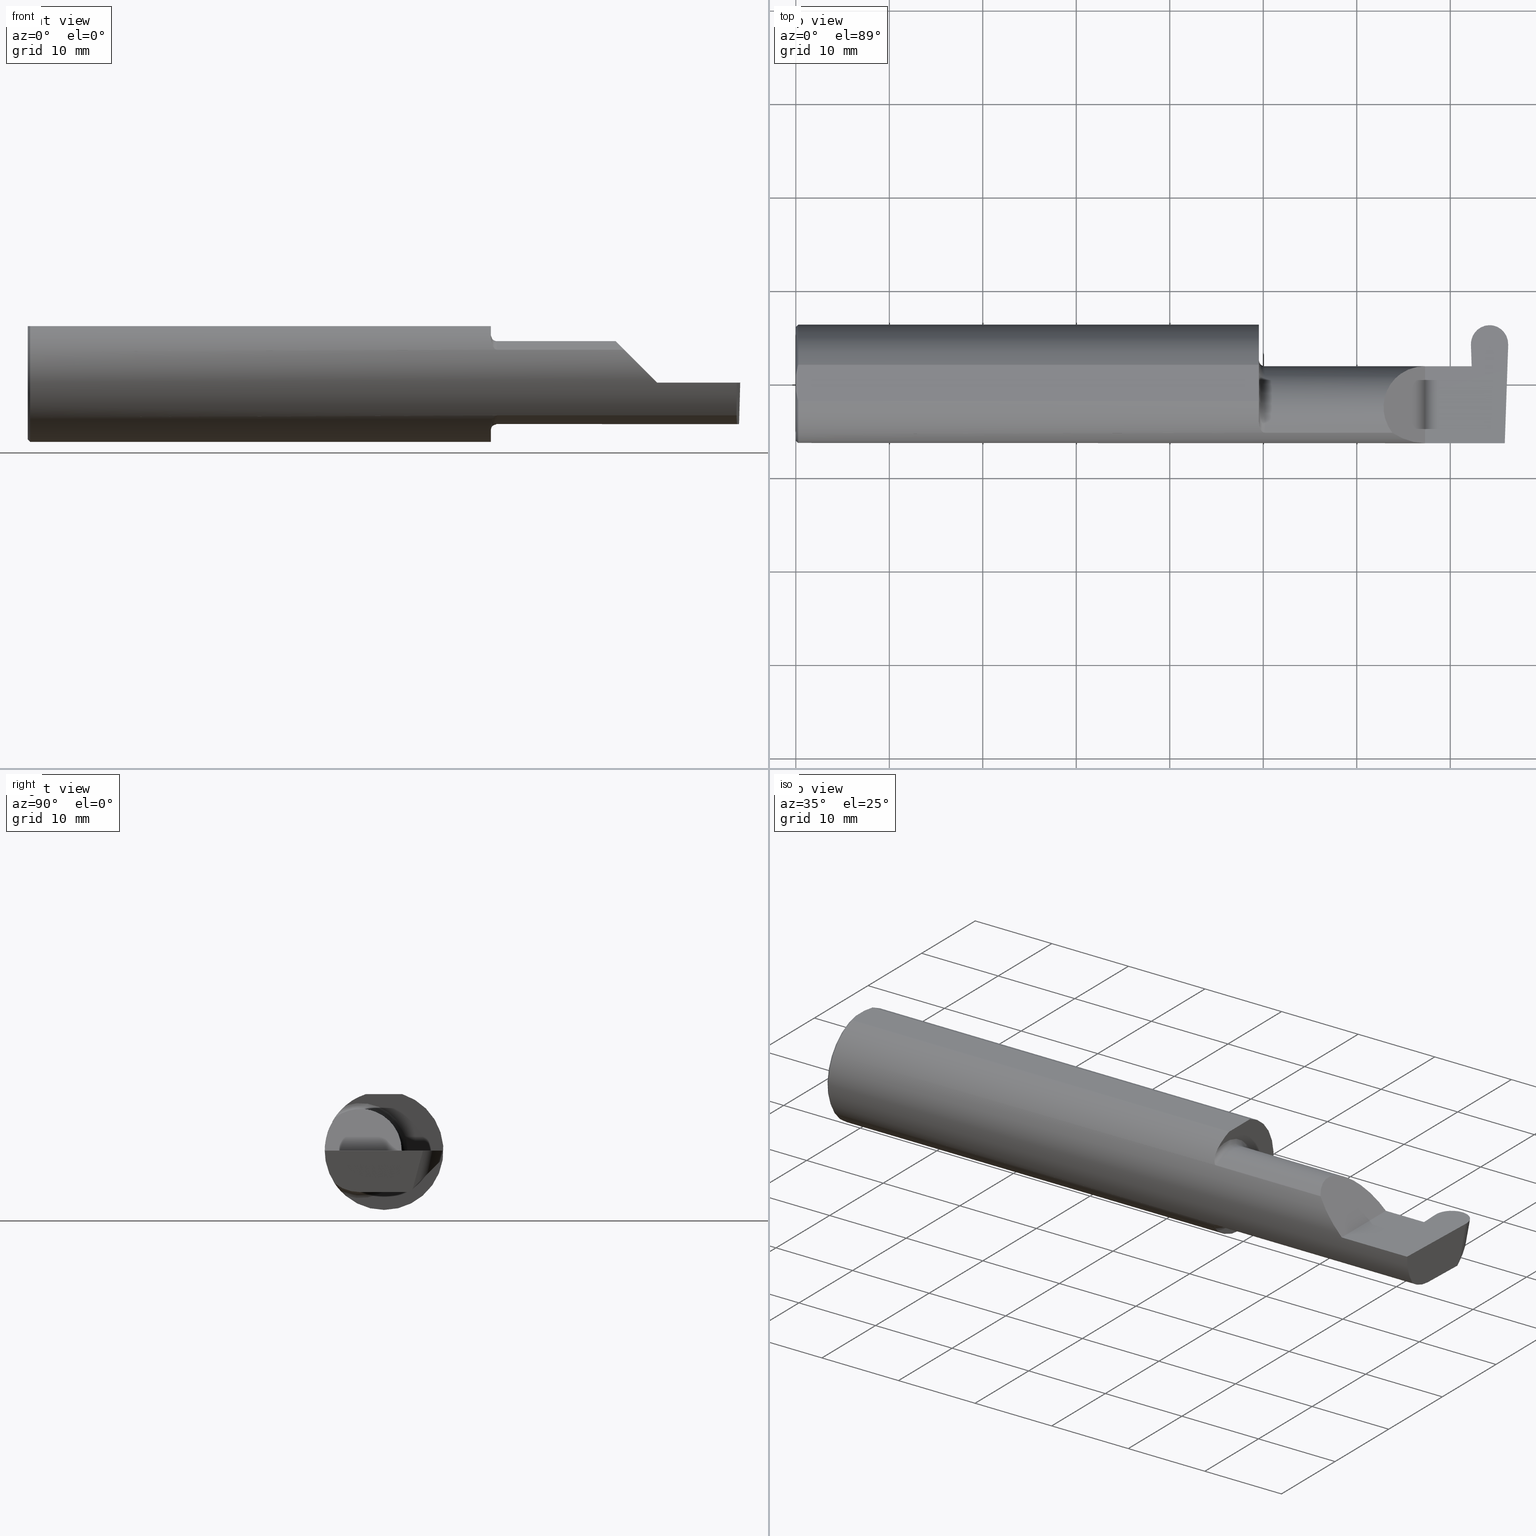
[diagram: canonical four-view strip — front | top / right | iso, engineering-drawing reading convention]
A machine part, canonical four-view strip (front | top / right | iso — engineering-drawing reading convention). The complete STEP part file that produces these views, byte-faithful:
ISO-10303-21;
HEADER;
FILE_DESCRIPTION (( 'STEP AP203' ),
    '1' );
FILE_NAME ('222491-GFR156-16.STEP',
    '2024-06-28T19:20:52',
    ( '' ),
    ( '' ),
    'SwSTEP 2.0',
    'SolidWorks 2024',
    '' );
FILE_SCHEMA (( 'CONFIG_CONTROL_DESIGN' ));
ENDSEC;

DATA;
#1 = CARTESIAN_POINT ( 'NONE',  ( 2.847896006995016549, 0.07056399972053264968, -0.1057442486376092144 ) ) ;
#2 = EDGE_CURVE ( 'NONE', #619, #664, #17, .T. ) ;
#3 = ORIENTED_EDGE ( 'NONE', *, *, #369, .T. ) ;
#4 = VECTOR ( 'NONE', #705, 39.37007874015748143 ) ;
#5 = CARTESIAN_POINT ( 'NONE',  ( 2.921940976684220370, 0.2471499999999999808, 0.000000000000000000 ) ) ;
#6 = CARTESIAN_POINT ( 'NONE',  ( 1.962616400345755574, -0.2024684335577102701, 0.1464246884265638649 ) ) ;
#7 = ORIENTED_EDGE ( 'NONE', *, *, #473, .T. ) ;
#8 = APPLICATION_PROTOCOL_DEFINITION ( 'international standard', 'config_control_design', 1994, #706 ) ;
#9 = PLANE ( 'NONE',  #672 ) ;
#10 = VERTEX_POINT ( 'NONE', #578 ) ;
#11 = PERSON_AND_ORGANIZATION ( #336, #124 ) ;
#12 = CARTESIAN_POINT ( 'NONE',  ( 1.975000000000000089, -0.1008500000000000646, 0.000000000000000000 ) ) ;
#13 = ORIENTED_EDGE ( 'NONE', *, *, #613, .F. ) ;
#14 = PERSON_AND_ORGANIZATION_ROLE ( 'creator' ) ;
#15 = PRODUCT_DEFINITION_FORMATION_WITH_SPECIFIED_SOURCE ( 'ANY', '', #355, .NOT_KNOWN. ) ;
#16 = CARTESIAN_POINT ( 'NONE',  ( 2.650000000000000355, -0.2500000000000000555, 4.286263797015729199E-17 ) ) ;
#17 = LINE ( 'NONE', #91, #320 ) ;
#18 = SHAPE_DEFINITION_REPRESENTATION ( #305, #214 ) ;
#19 = DIRECTION ( 'NONE',  ( 0.000000000000000000, -0.7071067811865514585, 0.7071067811865435759 ) ) ;
#20 = CARTESIAN_POINT ( 'NONE',  ( 1.950000000000000178, -0.1008500000000000507, 0.000000000000000000 ) ) ;
#21 = DIRECTION ( 'NONE',  ( -1.000000000000000000, -3.825103525024356331E-17, -0.000000000000000000 ) ) ;
#22 = CARTESIAN_POINT ( 'NONE',  ( 2.847162130284206061, 0.1205682248496117298, -0.1602561122985578790 ) ) ;
#23 = EDGE_CURVE ( 'NONE', #664, #461, #581, .T. ) ;
#24 = B_SPLINE_CURVE_WITH_KNOTS ( 'NONE', 3,
 ( #200, #481, #539, #535 ),
 .UNSPECIFIED., .F., .F.,
 ( 4, 4 ),
 ( 0.01593449416844770414, 0.01712021724825603733 ),
 .UNSPECIFIED. ) ;
#25 = VECTOR ( 'NONE', #325, 39.37007874015748854 ) ;
#26 = CARTESIAN_POINT ( 'NONE',  ( 1.967611663768900065, -0.2061921161193829843, -0.1411075319999377520 ) ) ;
#27 = AXIS2_PLACEMENT_3D ( 'NONE', #646, #201, #151 ) ;
#28 = LINE ( 'NONE', #526, #437 ) ;
#29 = ADVANCED_FACE ( 'NONE', ( #80 ), #408, .T. ) ;
#30 = CARTESIAN_POINT ( 'NONE',  ( 1.950000000000000178, -0.1616050818046604054, -0.1905487340154980447 ) ) ;
#31 = DIRECTION ( 'NONE',  ( -0.01806954526206912617, 0.01744955702544859211, 0.9996844524616943506 ) ) ;
#32 =( BOUNDED_CURVE ( )  B_SPLINE_CURVE ( 3, ( #22, #249, #468, #420 ),
 .UNSPECIFIED., .F., .T. ) 
 B_SPLINE_CURVE_WITH_KNOTS ( ( 4, 4 ),
 ( 1.556556287886218692, 3.148123430193717986 ),
 .UNSPECIFIED. ) 
 CURVE ( )  GEOMETRIC_REPRESENTATION_ITEM ( )  RATIONAL_B_SPLINE_CURVE ( ( 1.000000000000000000, 0.7998167921253449553, 0.7998167921253449553, 1.000000000000000000 ) ) 
 REPRESENTATION_ITEM ( '' )  );
#33 = EDGE_CURVE ( 'NONE', #411, #501, #32, .T. ) ;
#34 = PLANE ( 'NONE',  #379 ) ;
#35 = DIRECTION ( 'NONE',  ( -0.02590004391968283443, 0.2587322210431824421, 0.9656017944882975268 ) ) ;
#36 = ORIENTED_EDGE ( 'NONE', *, *, #56, .T. ) ;
#37 = CARTESIAN_POINT ( 'NONE',  ( 2.849201561102993718, -0.1010244175776143366, -0.1750000000000000722 ) ) ;
#38 = PLANE ( 'NONE',  #547 ) ;
#39 = VECTOR ( 'NONE', #35, 39.37007874015748854 ) ;
#40 = ORIENTED_EDGE ( 'NONE', *, *, #68, .T. ) ;
#41 = CARTESIAN_POINT ( 'NONE',  ( 2.511704467739031887, -0.2080850024789288877, 0.1382955322609669413 ) ) ;
#42 = DIRECTION ( 'NONE',  ( 0.000000000000000000, 0.000000000000000000, -1.000000000000000000 ) ) ;
#43 = VERTEX_POINT ( 'NONE', #252 ) ;
#44 = LINE ( 'NONE', #688, #585 ) ;
#45 = CARTESIAN_POINT ( 'NONE',  ( 2.987584882537838826, -0.1008500000000000368, -0.1750000000000000722 ) ) ;
#46 = ORIENTED_EDGE ( 'NONE', *, *, #369, .F. ) ;
#47 = EDGE_CURVE ( 'NONE', #692, #403, #86, .T. ) ;
#48 = CARTESIAN_POINT ( 'NONE',  ( 2.985438186182187259, -0.2498499999999999888, 0.000000000000000000 ) ) ;
#49 = CARTESIAN_POINT ( 'NONE',  ( 3.402190948718818664, -0.1008500000000000368, -0.1750000000000000722 ) ) ;
#50 = ORIENTED_EDGE ( 'NONE', *, *, #339, .F. ) ;
#51 = VECTOR ( 'NONE', #82, 39.37007874015748143 ) ;
#52 = VECTOR ( 'NONE', #99, 39.37007874015748143 ) ;
#53 = FACE_OUTER_BOUND ( 'NONE', #149, .T. ) ;
#54 = CARTESIAN_POINT ( 'NONE',  ( 1.950000000000000178, 0.000000000000000000, 0.000000000000000000 ) ) ;
#55 = ORIENTED_EDGE ( 'NONE', *, *, #196, .T. ) ;
#56 = EDGE_CURVE ( 'NONE', #215, #301, #28, .T. ) ;
#57 =( BOUNDED_CURVE ( )  B_SPLINE_CURVE ( 3, ( #137, #300, #569, #307 ),
 .UNSPECIFIED., .F., .T. ) 
 B_SPLINE_CURVE_WITH_KNOTS ( ( 4, 4 ),
 ( 3.045231736429742764, 4.645220385064936508 ),
 .UNSPECIFIED. ) 
 CURVE ( )  GEOMETRIC_REPRESENTATION_ITEM ( )  RATIONAL_B_SPLINE_CURVE ( ( 1.000000000000000000, 0.7978071872141905274, 0.7978071872141905274, 1.000000000000000000 ) ) 
 REPRESENTATION_ITEM ( '' )  );
#58 = DIRECTION ( 'NONE',  ( 1.000000000000000000, 0.000000000000000000, 0.000000000000000000 ) ) ;
#59 = ORIENTED_EDGE ( 'NONE', *, *, #294, .F. ) ;
#60 = CC_DESIGN_PERSON_AND_ORGANIZATION_ASSIGNMENT ( #288, #506, ( #355 ) ) ;
#61 = B_SPLINE_CURVE_WITH_KNOTS ( 'NONE', 3,
 ( #424, #145, #254, #313 ),
 .UNSPECIFIED., .F., .F.,
 ( 4, 4 ),
 ( 0.000000000000000000, 1.000000000000000000 ),
 .UNSPECIFIED. ) ;
#62 = FACE_OUTER_BOUND ( 'NONE', #75, .T. ) ;
#63 = EDGE_LOOP ( 'NONE', ( #13, #520, #511, #138, #615 ) ) ;
#64 = VECTOR ( 'NONE', #117, 39.37007874015748143 ) ;
#65 = LOCAL_TIME ( 12, 20, 52.00000000000000000, #510 ) ;
#66 = CARTESIAN_POINT ( 'NONE',  ( 2.985143277913549831, -0.1771157075472508391, -0.1623092683844332140 ) ) ;
#67 = VERTEX_POINT ( 'NONE', #198 ) ;
#68 = EDGE_CURVE ( 'NONE', #533, #127, #273, .T. ) ;
#69 = DATE_AND_TIME ( #356, #171 ) ;
#70 = CARTESIAN_POINT ( 'NONE',  ( 2.847162130284206061, 0.1205682248496117298, -0.1602561122985578790 ) ) ;
#71 = ORIENTED_EDGE ( 'NONE', *, *, #316, .F. ) ;
#72 = B_SPLINE_CURVE_WITH_KNOTS ( 'NONE', 3,
 ( #500, #122, #557, #283, #504, #605, #566, #6, #670, #562, #507, #235, #178, #334 ),
 .UNSPECIFIED., .F., .F.,
 ( 4, 2, 2, 2, 2, 2, 4 ),
 ( 0.0003834465838148165464, 0.0008781406165086598969, 0.001372834649202503247, 0.001867528681896348658, 0.002114875698243275700, 0.002238549206416746810, 0.002362222714590217487 ),
 .UNSPECIFIED. ) ;
#73 = PERSON_AND_ORGANIZATION ( #336, #124 ) ;
#74 = DIRECTION ( 'NONE',  ( -1.000000000000000000, -0.000000000000000000, -0.000000000000000000 ) ) ;
#75 = EDGE_LOOP ( 'NONE', ( #3, #319, #517, #220 ) ) ;
#76 = DATE_AND_TIME ( #192, #240 ) ;
#77 = VECTOR ( 'NONE', #100, 39.37007874015748143 ) ;
#78 = CONICAL_SURFACE ( 'NONE', #563, 0.2398500000000001742, 0.7853981633974466137 ) ;
#79 = PLANE ( 'NONE',  #144 ) ;
#80 = FACE_OUTER_BOUND ( 'NONE', #505, .T. ) ;
#81 = ADVANCED_FACE ( 'NONE', ( #583 ), #130, .F. ) ;
#82 = DIRECTION ( 'NONE',  ( -0.000000000000000000, 1.000000000000000000, -0.000000000000000000 ) ) ;
#83 = EDGE_LOOP ( 'NONE', ( #187, #497, #530, #246, #335, #442, #244, #594, #118 ) ) ;
#84 = DIRECTION ( 'NONE',  ( 0.000000000000000000, 0.000000000000000000, -1.000000000000000000 ) ) ;
#85 = EDGE_CURVE ( 'NONE', #236, #430, #693, .T. ) ;
#86 = LINE ( 'NONE', #308, #353 ) ;
#87 =( BOUNDED_CURVE ( )  B_SPLINE_CURVE ( 3, ( #556, #549, #278, #5 ),
 .UNSPECIFIED., .F., .T. ) 
 B_SPLINE_CURVE_WITH_KNOTS ( ( 4, 4 ),
 ( 1.637964922114649946, 3.237953570749842136 ),
 .UNSPECIFIED. ) 
 CURVE ( )  GEOMETRIC_REPRESENTATION_ITEM ( )  RATIONAL_B_SPLINE_CURVE ( ( 1.000000000000000000, 0.7978071872141907495, 0.7978071872141907495, 1.000000000000000000 ) ) 
 REPRESENTATION_ITEM ( '' )  );
#88 = VECTOR ( 'NONE', #518, 39.37007874015748143 ) ;
#89 = LINE ( 'NONE', #649, #345 ) ;
#90 = AXIS2_PLACEMENT_3D ( 'NONE', #107, #332, #227 ) ;
#91 = CARTESIAN_POINT ( 'NONE',  ( 2.845984104502489398, 0.07414999999999977165, 0.000000000000000000 ) ) ;
#92 = EDGE_CURVE ( 'NONE', #465, #692, #184, .T. ) ;
#93 = LINE ( 'NONE', #257, #404 ) ;
#94 = PLANE ( 'NONE',  #217 ) ;
#95 = VERTEX_POINT ( 'NONE', #698 ) ;
#96 = CARTESIAN_POINT ( 'NONE',  ( 1.956147634408387459, -0.1932733126899460196, -0.1584637047788198250 ) ) ;
#97 = DIRECTION ( 'NONE',  ( 0.000000000000000000, -0.9998476951563912696, 0.01745240643728358451 ) ) ;
#98 = VERTEX_POINT ( 'NONE', #269 ) ;
#99 = DIRECTION ( 'NONE',  ( 1.000000000000000000, 0.000000000000000000, 0.000000000000000000 ) ) ;
#100 = DIRECTION ( 'NONE',  ( -1.000000000000000000, -3.825103525024356331E-17, -0.000000000000000000 ) ) ;
#101 = AXIS2_PLACEMENT_3D ( 'NONE', #16, #351, #237 ) ;
#102 = ORIENTED_EDGE ( 'NONE', *, *, #400, .T. ) ;
#103 = LINE ( 'NONE', #154, #204 ) ;
#104 = ADVANCED_FACE ( 'NONE', ( #323 ), #489, .T. ) ;
#105 = DIRECTION ( 'NONE',  ( -1.000000000000000000, -0.000000000000000000, -0.000000000000000000 ) ) ;
#106 = ORIENTED_EDGE ( 'NONE', *, *, #564, .T. ) ;
#107 = CARTESIAN_POINT ( 'NONE',  ( 3.501298404146671484, 0.2498499999999998500, 0.2378499999999998671 ) ) ;
#108 = CARTESIAN_POINT ( 'NONE',  ( 2.849201506090199842, -0.1008500000000000368, -0.1750000000000000444 ) ) ;
#109 = EDGE_LOOP ( 'NONE', ( #276, #169, #695, #59 ) ) ;
#110 = DIRECTION ( 'NONE',  ( 1.000000000000000000, 0.000000000000000000, 0.000000000000000000 ) ) ;
#111 =( BOUNDED_CURVE ( )  B_SPLINE_CURVE ( 3, ( #173, #119, #660, #228 ),
 .UNSPECIFIED., .F., .T. ) 
 B_SPLINE_CURVE_WITH_KNOTS ( ( 4, 4 ),
 ( 3.135061876985868246, 4.726629019293367762 ),
 .UNSPECIFIED. ) 
 CURVE ( )  GEOMETRIC_REPRESENTATION_ITEM ( )  RATIONAL_B_SPLINE_CURVE ( ( 1.000000000000000000, 0.7998167921253448442, 0.7998167921253448442, 1.000000000000000000 ) ) 
 REPRESENTATION_ITEM ( '' )  );
#112 = CARTESIAN_POINT ( 'NONE',  ( 2.984481223124517690, -0.2080850024789289432, -0.1382955322609668858 ) ) ;
#113 = ORIENTED_EDGE ( 'NONE', *, *, #564, .F. ) ;
#114 = AXIS2_PLACEMENT_3D ( 'NONE', #20, #191, #304 ) ;
#115 = ADVANCED_FACE ( 'NONE', ( #529 ), #375, .T. ) ;
#116 =( NAMED_UNIT ( * ) PLANE_ANGLE_UNIT ( ) SI_UNIT ( $, .RADIAN. ) );
#117 = DIRECTION ( 'NONE',  ( 1.000000000000000000, 3.825103525024356331E-17, 0.000000000000000000 ) ) ;
#118 = ORIENTED_EDGE ( 'NONE', *, *, #689, .T. ) ;
#119 = CARTESIAN_POINT ( 'NONE',  ( 2.968109836623094466, 0.2342636810864597019, -0.04656065606170858850 ) ) ;
#120 = ORIENTED_EDGE ( 'NONE', *, *, #700, .F. ) ;
#121 = CARTESIAN_POINT ( 'NONE',  ( 0.000000000000000000, 0.000000000000000000, 0.000000000000000000 ) ) ;
#122 = CARTESIAN_POINT ( 'NONE',  ( 1.950000000000000844, -0.1665641037263009272, 0.1863429692936361959 ) ) ;
#123 = ORIENTED_EDGE ( 'NONE', *, *, #33, .F. ) ;
#124 = ORGANIZATION ( 'UNSPECIFIED', 'UNSPECIFIED', '' ) ;
#125 = CIRCLE ( 'NONE', #219, 0.2498499999999999888 ) ;
#126 = CARTESIAN_POINT ( 'NONE',  ( 2.650000000000000355, -0.2500000000000000555, 4.286263797015729199E-17 ) ) ;
#127 = VERTEX_POINT ( 'NONE', #428 ) ;
#128 = APPROVAL_ROLE ( '' ) ;
#129 = CARTESIAN_POINT ( 'NONE',  ( 2.847934510574751776, 0.1058243371481696476, -0.1750000000000000722 ) ) ;
#130 = PLANE ( 'NONE',  #286 ) ;
#131 = PERSON_AND_ORGANIZATION_ROLE ( 'classification_officer' ) ;
#132 = DIRECTION ( 'NONE',  ( -0.03489949670249601482, 0.9993908270190959842, -1.222058880457094148E-16 ) ) ;
#133 = DIRECTION ( 'NONE',  ( -1.000000000000000000, -3.825103525024356331E-17, -0.000000000000000000 ) ) ;
#134 = EDGE_CURVE ( 'NONE', #398, #344, #314, .T. ) ;
#135 = COORDINATED_UNIVERSAL_TIME_OFFSET ( 8, 0, .BEHIND. ) ;
#136 = VECTOR ( 'NONE', #133, 39.37007874015748143 ) ;
#137 = CARTESIAN_POINT ( 'NONE',  ( 2.920795643315781120, 0.2471499999999999808, 0.000000000000000000 ) ) ;
#138 = ORIENTED_EDGE ( 'NONE', *, *, #524, .F. ) ;
#139 = PRODUCT_RELATED_PRODUCT_CATEGORY ( 'detail', '', ( #355 ) ) ;
#140 = EDGE_LOOP ( 'NONE', ( #179, #238, #328 ) ) ;
#141 = FACE_OUTER_BOUND ( 'NONE', #455, .T. ) ;
#142 = EDGE_CURVE ( 'NONE', #166, #95, #213, .T. ) ;
#143 = DIRECTION ( 'NONE',  ( -1.000000000000000000, -0.000000000000000000, -0.000000000000000000 ) ) ;
#144 = AXIS2_PLACEMENT_3D ( 'NONE', #675, #292, #577 ) ;
#145 = CARTESIAN_POINT ( 'NONE',  ( 2.834871741199312734, 0.07407892981889410700, -0.004071607948635049511 ) ) ;
#146 = DIRECTION ( 'NONE',  ( 0.9992386149554828290, 0.03489418134010871531, 0.01745240643728358798 ) ) ;
#147 = CARTESIAN_POINT ( 'NONE',  ( 2.849147273053401097, 0.07109536363756167876, -0.1750000000000000722 ) ) ;
#148 = CARTESIAN_POINT ( 'NONE',  ( 2.842784520300991158, 0.1657741035941333874, 0.000000000000000000 ) ) ;
#149 = EDGE_LOOP ( 'NONE', ( #347, #55, #444, #113, #206, #315 ) ) ;
#150 = DIRECTION ( 'NONE',  ( 0.000000000000000000, -0.2588190451025209615, -0.9659258262890682012 ) ) ;
#151 = DIRECTION ( 'NONE',  ( 0.000000000000000000, 0.000000000000000000, 1.000000000000000000 ) ) ;
#152 = VERTEX_POINT ( 'NONE', #205 ) ;
#153 = EDGE_CURVE ( 'NONE', #608, #95, #450, .T. ) ;
#154 = CARTESIAN_POINT ( 'NONE',  ( 2.845984104502489398, 0.07414999999999977165, 0.000000000000000000 ) ) ;
#155 = FACE_OUTER_BOUND ( 'NONE', #555, .T. ) ;
#156 = VECTOR ( 'NONE', #586, 39.37007874015748854 ) ;
#157 = CC_DESIGN_APPROVAL ( #396, ( #365 ) ) ;
#158 = VERTEX_POINT ( 'NONE', #266 ) ;
#159 = FACE_OUTER_BOUND ( 'NONE', #83, .T. ) ;
#160 =( BOUNDED_CURVE ( )  B_SPLINE_CURVE ( 3, ( #385, #708, #393, #48 ),
 .UNSPECIFIED., .F., .T. ) 
 B_SPLINE_CURVE_WITH_KNOTS ( ( 4, 4 ),
 ( 6.160376845738947615, 6.746954780470606039 ),
 .UNSPECIFIED. ) 
 CURVE ( )  GEOMETRIC_REPRESENTATION_ITEM ( )  RATIONAL_B_SPLINE_CURVE ( ( 1.000000000000000000, 0.9715321379117538569, 0.9715321379117538569, 1.000000000000000000 ) ) 
 REPRESENTATION_ITEM ( '' )  );
#161 = CARTESIAN_POINT ( 'NONE',  ( 0.009999999999999856226, -0.07650098038587520299, 0.2378499999999998671 ) ) ;
#162 = ORIENTED_EDGE ( 'NONE', *, *, #23, .F. ) ;
#163 = DIRECTION ( 'NONE',  ( 0.02590004391968283443, -0.2587322210431824976, -0.9656017944882975268 ) ) ;
#164 = LINE ( 'NONE', #446, #402 ) ;
#165 = ADVANCED_FACE ( 'NONE', ( #650 ), #202, .T. ) ;
#166 = VERTEX_POINT ( 'NONE', #587 ) ;
#167 = CARTESIAN_POINT ( 'NONE',  ( 2.988089862307433453, -0.08638927141514796126, -0.1750000000000000722 ) ) ;
#168 = CARTESIAN_POINT ( 'NONE',  ( 2.834942811380418259, 0.07414999999999977165, 0.000000000000000000 ) ) ;
#169 = ORIENTED_EDGE ( 'NONE', *, *, #153, .T. ) ;
#170 = AXIS2_PLACEMENT_3D ( 'NONE', #611, #58, #337 ) ;
#171 = LOCAL_TIME ( 12, 20, 52.00000000000000000, #135 ) ;
#172 = CARTESIAN_POINT ( 'NONE',  ( 0.000000000000000000, 0.000000000000000000, 0.000000000000000000 ) ) ;
#173 = CARTESIAN_POINT ( 'NONE',  ( 2.921368310000000967, 0.2348204004542366052, -0.04600393669393169210 ) ) ;
#174 = ORIENTED_EDGE ( 'NONE', *, *, #262, .F. ) ;
#175 = CARTESIAN_POINT ( 'NONE',  ( 1.950000000000000178, -0.1008500000000000507, 0.000000000000000000 ) ) ;
#176 = ORIENTED_EDGE ( 'NONE', *, *, #339, .T. ) ;
#177 = ADVANCED_FACE ( 'NONE', ( #155 ), #38, .F. ) ;
#178 = CARTESIAN_POINT ( 'NONE',  ( 1.973329956043142985, -0.2080850024798590603, 0.1382955322595676440 ) ) ;
#179 = ORIENTED_EDGE ( 'NONE', *, *, #242, .T. ) ;
#180 = VECTOR ( 'NONE', #443, 39.37007874015748143 ) ;
#181 = AXIS2_PLACEMENT_3D ( 'NONE', #121, #493, #342 ) ;
#182 = DATE_AND_TIME ( #573, #548 ) ;
#183 = LINE ( 'NONE', #579, #682 ) ;
#184 = LINE ( 'NONE', #258, #39 ) ;
#185 = APPROVAL_DATE_TIME ( #298, #499 ) ;
#186 = DIRECTION ( 'NONE',  ( 3.825103525024356331E-17, -1.000000000000000000, 0.000000000000000000 ) ) ;
#187 = ORIENTED_EDGE ( 'NONE', *, *, #47, .F. ) ;
#188 = EDGE_CURVE ( 'NONE', #545, #152, #263, .T. ) ;
#189 = PERSON_AND_ORGANIZATION_ROLE ( 'creator' ) ;
#190 = CARTESIAN_POINT ( 'NONE',  ( 2.650000000000000355, -0.2498499999999999610, 4.286263797015729199E-17 ) ) ;
#191 = DIRECTION ( 'NONE',  ( -1.000000000000000000, -3.825103525024356331E-17, -0.000000000000000000 ) ) ;
#192 = CALENDAR_DATE ( 2024, 28, 6 ) ;
#193 = TOROIDAL_SURFACE ( 'NONE', #595, 0.1999999999999999833, 0.02499999999999993894 ) ;
#194 = DIRECTION ( 'NONE',  ( 1.000000000000000000, 3.825103525024356331E-17, 0.000000000000000000 ) ) ;
#195 = ORIENTED_EDGE ( 'NONE', *, *, #142, .F. ) ;
#196 = EDGE_CURVE ( 'NONE', #158, #98, #380, .T. ) ;
#197 = CARTESIAN_POINT ( 'NONE',  ( 2.600434159100402987, -0.2498499999999999610, 0.04956584089959713973 ) ) ;
#198 = CARTESIAN_POINT ( 'NONE',  ( 2.994802109425249714, 0.1058243371481696615, -0.1750000000000001277 ) ) ;
#199 = EDGE_CURVE ( 'NONE', #358, #376, #482, .T. ) ;
#200 = CARTESIAN_POINT ( 'NONE',  ( 0.000000000000000000, 0.03090954545120574992, 0.2378499999999998671 ) ) ;
#201 = DIRECTION ( 'NONE',  ( -1.000000000000000000, -0.000000000000000000, -0.000000000000000000 ) ) ;
#202 = CONICAL_SURFACE ( 'NONE', #491, 0.2398500000000001742, 0.7853981633974466137 ) ;
#203 = DIRECTION ( 'NONE',  ( 0.000000000000000000, -0.9659258262890682012, 0.2588190451025209615 ) ) ;
#204 = VECTOR ( 'NONE', #440, 39.37007874015748143 ) ;
#205 = CARTESIAN_POINT ( 'NONE',  ( 2.842863629214074095, 0.1635087207221616323, 0.000000000000000000 ) ) ;
#206 = ORIENTED_EDGE ( 'NONE', *, *, #417, .F. ) ;
#207 =( BOUNDED_CURVE ( )  B_SPLINE_CURVE ( 3, ( #625, #197, #295, #303 ),
 .UNSPECIFIED., .F., .F. ) 
 B_SPLINE_CURVE_WITH_KNOTS ( ( 4, 4 ),
 ( 4.712388980384689674, 5.298966915116348986 ),
 .UNSPECIFIED. ) 
 CURVE ( )  GEOMETRIC_REPRESENTATION_ITEM ( )  RATIONAL_B_SPLINE_CURVE ( ( 1.000000000000000000, 0.9715321379117536349, 0.9715321379117536349, 1.000000000000000000 ) ) 
 REPRESENTATION_ITEM ( '' )  );
#208 = LINE ( 'NONE', #697, #561 ) ;
#209 = PLANE ( 'NONE',  #389 ) ;
#210 = ORIENTED_EDGE ( 'NONE', *, *, #271, .T. ) ;
#211 = ADVANCED_FACE ( 'NONE', ( #475 ), #209, .F. ) ;
#212 = PLANE ( 'NONE',  #250 ) ;
#213 = LINE ( 'NONE', #690, #77 ) ;
#214 = ADVANCED_BREP_SHAPE_REPRESENTATION ( '222491-GFR156-16', ( #434, #181 ), #640 ) ;
#215 = VERTEX_POINT ( 'NONE', #45 ) ;
#216 = LINE ( 'NONE', #37, #156 ) ;
#217 = AXIS2_PLACEMENT_3D ( 'NONE', #218, #97, #318 ) ;
#218 = CARTESIAN_POINT ( 'NONE',  ( 2.845984104502489398, 0.07414999999999977165, 0.000000000000000000 ) ) ;
#219 = AXIS2_PLACEMENT_3D ( 'NONE', #600, #272, #502 ) ;
#220 = ORIENTED_EDGE ( 'NONE', *, *, #294, .T. ) ;
#221 = CARTESIAN_POINT ( 'NONE',  ( 2.921288626691769696, 0.1664000941608517470, 0.001937958156663478889 ) ) ;
#222 = ADVANCED_FACE ( 'NONE', ( #694 ), #94, .F. ) ;
#223 = DIRECTION ( 'NONE',  ( -3.825103525024356331E-17, 1.000000000000000000, 0.000000000000000000 ) ) ;
#224 = ORIENTED_EDGE ( 'NONE', *, *, #546, .T. ) ;
#225 = LINE ( 'NONE', #126, #180 ) ;
#226 = EDGE_LOOP ( 'NONE', ( #490, #433, #643, #123, #361 ) ) ;
#227 = DIRECTION ( 'NONE',  ( 1.000000000000000000, 0.000000000000000000, -0.000000000000000000 ) ) ;
#228 = CARTESIAN_POINT ( 'NONE',  ( 2.995574489715794542, 0.1205682248496117576, -0.1602561122985578790 ) ) ;
#229 = ORIENTED_EDGE ( 'NONE', *, *, #23, .T. ) ;
#230 = CIRCLE ( 'NONE', #480, 0.1999999999999999833 ) ;
#231 =( LENGTH_UNIT ( ) NAMED_UNIT ( * ) SI_UNIT ( $, .METRE. ) );
#232 = CARTESIAN_POINT ( 'NONE',  ( 1.950000000000000178, 0.2498499999999999055, 0.000000000000000000 ) ) ;
#233 = ORIENTED_EDGE ( 'NONE', *, *, #2, .T. ) ;
#234 = EDGE_CURVE ( 'NONE', #152, #411, #655, .T. ) ;
#235 = CARTESIAN_POINT ( 'NONE',  ( 1.971718393013768722, -0.2077830475237240626, 0.1387513848711937892 ) ) ;
#236 = VERTEX_POINT ( 'NONE', #161 ) ;
#237 = DIRECTION ( 'NONE',  ( -0.7071067811865511255, 0.000000000000000000, 0.7071067811865439090 ) ) ;
#238 = ORIENTED_EDGE ( 'NONE', *, *, #2, .F. ) ;
#239 = CLOSED_SHELL ( 'NONE', ( #165, #222, #104, #373, #572, #665, #309, #623, #407, #29, #277, #177, #509, #456, #211, #438, #81, #115, #674 ) ) ;
#240 = LOCAL_TIME ( 12, 20, 52.00000000000000000, #459 ) ;
#241 = PERSON_AND_ORGANIZATION ( #336, #124 ) ;
#242 = EDGE_CURVE ( 'NONE', #301, #664, #256, .T. ) ;
#243 = CARTESIAN_POINT ( 'NONE',  ( 2.650000000000000355, 0.07414999999999999369, 1.285879139104719253E-16 ) ) ;
#244 = ORIENTED_EDGE ( 'NONE', *, *, #199, .F. ) ;
#245 = CARTESIAN_POINT ( 'NONE',  ( 2.845984104502489398, 0.07414999999999977165, 0.000000000000000000 ) ) ;
#246 = ORIENTED_EDGE ( 'NONE', *, *, #546, .F. ) ;
#247 = PERSON_AND_ORGANIZATION ( #336, #124 ) ;
#248 = CARTESIAN_POINT ( 'NONE',  ( 0.000000000000000000, -0.03090954545120560767, 0.2378499999999998671 ) ) ;
#249 = CARTESIAN_POINT ( 'NONE',  ( 2.843700459396050206, 0.1866477033902743665, -0.09417663375789452063 ) ) ;
#250 = AXIS2_PLACEMENT_3D ( 'NONE', #488, #203, #150 ) ;
#251 = CARTESIAN_POINT ( 'NONE',  ( 1.975000000000000089, -0.2080850024789289709, -0.1382955322609668580 ) ) ;
#252 = CARTESIAN_POINT ( 'NONE',  ( 1.950000000000000178, -0.1616050818046604054, 0.1905487340154980447 ) ) ;
#253 = CC_DESIGN_DATE_AND_TIME_ASSIGNMENT ( #76, #633, ( #291 ) ) ;
#254 = CARTESIAN_POINT ( 'NONE',  ( 2.834907276289865052, 0.07411446490944693932, -0.002035803974317524322 ) ) ;
#255 = CARTESIAN_POINT ( 'NONE',  ( 2.850147609618529643, -2.782351745012011879, -0.1805526503597116583 ) ) ;
#256 =( BOUNDED_CURVE ( )  B_SPLINE_CURVE ( 3, ( #108, #274, #1, #451 ),
 .UNSPECIFIED., .F., .T. ) 
 B_SPLINE_CURVE_WITH_KNOTS ( ( 4, 4 ),
 ( 3.159045946109733993, 4.694935687864652429 ),
 .UNSPECIFIED. ) 
 CURVE ( )  GEOMETRIC_REPRESENTATION_ITEM ( )  RATIONAL_B_SPLINE_CURVE ( ( 1.000000000000000000, 0.8128932002257887035, 0.8128932002257887035, 1.000000000000000000 ) ) 
 REPRESENTATION_ITEM ( '' )  );
#257 = CARTESIAN_POINT ( 'NONE',  ( 2.999952099699010333, 0.1657741035941333874, 0.000000000000000000 ) ) ;
#258 = CARTESIAN_POINT ( 'NONE',  ( 2.918834969710874638, 0.2667364315176928846, 0.07309755756299828044 ) ) ;
#259 = ORIENTED_EDGE ( 'NONE', *, *, #536, .F. ) ;
#260 = AXIS2_PLACEMENT_3D ( 'NONE', #390, #281, #340 ) ;
#261 = DIRECTION ( 'NONE',  ( -0.02590004391968272687, -0.2587322210431824421, -0.9656017944882974158 ) ) ;
#262 = EDGE_CURVE ( 'NONE', #158, #43, #439, .T. ) ;
#263 = LINE ( 'NONE', #148, #297 ) ;
#264 = ORIENTED_EDGE ( 'NONE', *, *, #417, .T. ) ;
#265 = CARTESIAN_POINT ( 'NONE',  ( 2.650000000000000355, 0.07414999999999999369, 1.285879139104719253E-16 ) ) ;
#266 = CARTESIAN_POINT ( 'NONE',  ( 1.950000000000000178, -0.07650098038587527238, 0.2378499999999998671 ) ) ;
#267 = ORIENTED_EDGE ( 'NONE', *, *, #271, .F. ) ;
#268 = CARTESIAN_POINT ( 'NONE',  ( 2.921368310000001411, 0.2414292636342587894, -0.02135007877365307713 ) ) ;
#269 = CARTESIAN_POINT ( 'NONE',  ( 1.950000000000000178, 0.07650098038587520299, 0.2378499999999998671 ) ) ;
#270 = ORIENTED_EDGE ( 'NONE', *, *, #644, .T. ) ;
#271 = EDGE_CURVE ( 'NONE', #608, #10, #394, .T. ) ;
#272 = DIRECTION ( 'NONE',  ( 1.000000000000000000, 0.000000000000000000, 0.000000000000000000 ) ) ;
#273 = CIRCLE ( 'NONE', #460, 0.2398500000000001742 ) ;
#274 = CARTESIAN_POINT ( 'NONE',  ( 2.849170060624871326, -0.001152430219572287730, -0.1750000000000000722 ) ) ;
#275 = APPROVAL_PERSON_ORGANIZATION ( #382, #552, #462 ) ;
#276 = ORIENTED_EDGE ( 'NONE', *, *, #359, .T. ) ;
#277 = ADVANCED_FACE ( 'NONE', ( #62 ), #9, .T. ) ;
#278 = CARTESIAN_POINT ( 'NONE',  ( 2.969012533631873119, 0.2471500000000000918, 2.705682905371335382E-18 ) ) ;
#279 = DIRECTION ( 'NONE',  ( 1.000000000000000000, 3.825103525024356331E-17, 0.000000000000000000 ) ) ;
#280 = VERTEX_POINT ( 'NONE', #554 ) ;
#281 = DIRECTION ( 'NONE',  ( 1.000000000000000000, 0.000000000000000000, 0.000000000000000000 ) ) ;
#282 = ORIENTED_EDGE ( 'NONE', *, *, #284, .T. ) ;
#283 = CARTESIAN_POINT ( 'NONE',  ( 1.951849548162863934, -0.1805300287242672663, 0.1728462070311780063 ) ) ;
#284 = EDGE_CURVE ( 'NONE', #166, #215, #631, .T. ) ;
#285 = VERTEX_POINT ( 'NONE', #663 ) ;
#286 = AXIS2_PLACEMENT_3D ( 'NONE', #255, #312, #676 ) ;
#287 = APPROVAL_PERSON_ORGANIZATION ( #73, #396, #624 ) ;
#288 = PERSON_AND_ORGANIZATION ( #336, #124 ) ;
#289 = CARTESIAN_POINT ( 'NONE',  ( 0.009999999999999856226, 0.000000000000000000, -0.2498499999999999888 ) ) ;
#290 = ORIENTED_EDGE ( 'NONE', *, *, #153, .F. ) ;
#291 = PRODUCT_DEFINITION ( 'UNKNOWN', '', #15, #609 ) ;
#292 = DIRECTION ( 'NONE',  ( -0.9992386149554828290, 0.03489418134010831979, 0.01745240643728358798 ) ) ;
#293 = EDGE_LOOP ( 'NONE', ( #458, #176, #632, #591 ) ) ;
#294 = EDGE_CURVE ( 'NONE', #43, #285, #230, .T. ) ;
#295 = CARTESIAN_POINT ( 'NONE',  ( 2.552984868485331571, -0.2355204011147991605, 0.09701513151466779894 ) ) ;
#296 = EDGE_LOOP ( 'NONE', ( #606, #612, #647 ) ) ;
#297 = VECTOR ( 'NONE', #371, 39.37007874015748143 ) ;
#298 = DATE_AND_TIME ( #679, #65 ) ;
#299 = EDGE_CURVE ( 'NONE', #501, #280, #111, .T. ) ;
#300 = CARTESIAN_POINT ( 'NONE',  ( 2.873724086368128372, 0.2471500000000001473, 1.543549517755541833E-17 ) ) ;
#301 = VERTEX_POINT ( 'NONE', #397 ) ;
#302 = PERSON_AND_ORGANIZATION ( #336, #124 ) ;
#303 = CARTESIAN_POINT ( 'NONE',  ( 2.511704467739031887, -0.2080850024789288877, 0.1382955322609669413 ) ) ;
#304 = DIRECTION ( 'NONE',  ( 0.000000000000000000, -1.000000000000000000, 0.000000000000000000 ) ) ;
#305 = PRODUCT_DEFINITION_SHAPE ( 'NONE', 'NONE',  #291 ) ;
#306 = DATE_AND_TIME ( #515, #492 ) ;
#307 = CARTESIAN_POINT ( 'NONE',  ( 2.842863629214074095, 0.1635087207221616323, 0.000000000000000000 ) ) ;
#308 = CARTESIAN_POINT ( 'NONE',  ( -0.002039370078740339320, 0.2471499999999999808, 0.000000000000000000 ) ) ;
#309 = ADVANCED_FACE ( 'NONE', ( #614 ), #457, .F. ) ;
#310 = APPROVAL_PERSON_ORGANIZATION ( #241, #499, #128 ) ;
#311 = FACE_OUTER_BOUND ( 'NONE', #368, .T. ) ;
#312 = DIRECTION ( 'NONE',  ( 0.9998367324388628408, 0.0003153570480505199394, 0.01806679318280377325 ) ) ;
#313 = CARTESIAN_POINT ( 'NONE',  ( 2.834942811380418259, 0.07414999999999977165, 0.000000000000000000 ) ) ;
#314 = LINE ( 'NONE', #485, #704 ) ;
#315 = ORIENTED_EDGE ( 'NONE', *, *, #85, .F. ) ;
#316 = EDGE_CURVE ( 'NONE', #387, #67, #550, .T. ) ;
#317 = DIRECTION ( 'NONE',  ( 0.02590004391968273034, 0.2587322210431824976, 0.9656017944882975268 ) ) ;
#318 = DIRECTION ( 'NONE',  ( 0.000000000000000000, -0.01745240643728358451, -0.9998476951563912696 ) ) ;
#319 = ORIENTED_EDGE ( 'NONE', *, *, #196, .F. ) ;
#320 = VECTOR ( 'NONE', #31, 39.37007874015748143 ) ;
#321 = EDGE_CURVE ( 'NONE', #331, #671, #575, .T. ) ;
#322 = CARTESIAN_POINT ( 'NONE',  ( 2.921368310000000967, 0.2392271729750334863, -0.02956839299675443483 ) ) ;
#323 = FACE_OUTER_BOUND ( 'NONE', #598, .T. ) ;
#324 = ORIENTED_EDGE ( 'NONE', *, *, #700, .T. ) ;
#325 = DIRECTION ( 'NONE',  ( -0.03701744261649914797, -0.7066221440565398915, -0.7066221440565477740 ) ) ;
#326 = CARTESIAN_POINT ( 'NONE',  ( 2.842784520300991158, 0.1657741035941333874, 0.000000000000000000 ) ) ;
#327 = EDGE_CURVE ( 'NONE', #376, #398, #225, .T. ) ;
#328 = ORIENTED_EDGE ( 'NONE', *, *, #473, .F. ) ;
#329 = CARTESIAN_POINT ( 'NONE',  ( 2.920795643315781120, 0.2471499999999999808, 0.000000000000000000 ) ) ;
#330 = DIRECTION ( 'NONE',  ( 1.000000000000000000, 0.000000000000000000, 0.000000000000000000 ) ) ;
#331 = VERTEX_POINT ( 'NONE', #289 ) ;
#332 = DIRECTION ( 'NONE',  ( 0.000000000000000000, 0.000000000000000000, 1.000000000000000000 ) ) ;
#333 = VECTOR ( 'NONE', #597, 39.37007874015748143 ) ;
#334 = CARTESIAN_POINT ( 'NONE',  ( 1.975000000000000089, -0.2080850024789289432, 0.1382955322609669135 ) ) ;
#335 = ORIENTED_EDGE ( 'NONE', *, *, #134, .F. ) ;
#336 = PERSON ( 'UNSPECIFIED', 'UNSPECIFIED', 'UNSPECIFIED', ('UNSPECIFIED'), ('UNSPECIFIED'), ('UNSPECIFIED') ) ;
#337 = DIRECTION ( 'NONE',  ( 0.000000000000000000, 0.000000000000000000, -1.000000000000000000 ) ) ;
#338 = ORIENTED_EDGE ( 'NONE', *, *, #33, .T. ) ;
#339 = EDGE_CURVE ( 'NONE', #127, #331, #164, .T. ) ;
#340 = DIRECTION ( 'NONE',  ( 0.000000000000000000, 0.000000000000000000, -1.000000000000000000 ) ) ;
#341 = ORIENTED_EDGE ( 'NONE', *, *, #359, .F. ) ;
#342 = DIRECTION ( 'NONE',  ( 1.000000000000000000, 0.000000000000000000, 0.000000000000000000 ) ) ;
#343 = DIRECTION ( 'NONE',  ( 1.000000000000000000, 3.825103525024356331E-17, 0.000000000000000000 ) ) ;
#344 = VERTEX_POINT ( 'NONE', #168 ) ;
#345 = VECTOR ( 'NONE', #261, 39.37007874015748854 ) ;
#346 = DIRECTION ( 'NONE',  ( 0.000000000000000000, -1.000000000000000000, 0.000000000000000000 ) ) ;
#347 = ORIENTED_EDGE ( 'NONE', *, *, #541, .T. ) ;
#348 = APPROVAL_DATE_TIME ( #182, #552 ) ;
#349 = DIRECTION ( 'NONE',  ( 0.000000000000000000, -0.7071067811865435759, -0.7071067811865514585 ) ) ;
#350 = CARTESIAN_POINT ( 'NONE',  ( 0.005459900170181723050, -0.06167314502012866823, 0.2378499999999998671 ) ) ;
#351 = DIRECTION ( 'NONE',  ( -0.7071067811865439090, 0.000000000000000000, -0.7071067811865511255 ) ) ;
#352 = CARTESIAN_POINT ( 'NONE',  ( 0.000000000000000000, 0.000000000000000000, 0.000000000000000000 ) ) ;
#353 = VECTOR ( 'NONE', #522, 39.37007874015748143 ) ;
#354 = CC_DESIGN_SECURITY_CLASSIFICATION ( #365, ( #15 ) ) ;
#355 = PRODUCT ( '222491-GFR156-16', '222491-GFR156-16', '', ( #560 ) ) ;
#356 = CALENDAR_DATE ( 2024, 28, 6 ) ;
#357 = LINE ( 'NONE', #245, #88 ) ;
#358 = VERTEX_POINT ( 'NONE', #658 ) ;
#359 = EDGE_CURVE ( 'NONE', #43, #608, #72, .T. ) ;
#360 = FACE_OUTER_BOUND ( 'NONE', #635, .T. ) ;
#361 = ORIENTED_EDGE ( 'NONE', *, *, #234, .F. ) ;
#362 = FACE_OUTER_BOUND ( 'NONE', #296, .T. ) ;
#363 = DIRECTION ( 'NONE',  ( 0.000000000000000000, 0.000000000000000000, -1.000000000000000000 ) ) ;
#364 = VECTOR ( 'NONE', #532, 39.37007874015748854 ) ;
#365 = SECURITY_CLASSIFICATION ( '', '', #409 ) ;
#366 = CARTESIAN_POINT ( 'NONE',  ( 1.951385488563269988, -0.1808287530430324752, -0.1728790649396288182 ) ) ;
#367 = DIRECTION ( 'NONE',  ( -0.03489949670249601482, 0.9993908270190959842, 0.000000000000000000 ) ) ;
#368 = EDGE_LOOP ( 'NONE', ( #381, #637, #651 ) ) ;
#369 = EDGE_CURVE ( 'NONE', #285, #98, #616, .T. ) ;
#370 = CARTESIAN_POINT ( 'NONE',  ( 2.921368310000000967, 0.2348204004542366052, -0.04600393669393169210 ) ) ;
#371 = DIRECTION ( 'NONE',  ( -0.03489949670249602176, 0.9993908270190959842, -0.000000000000000000 ) ) ;
#372 = ORIENTED_EDGE ( 'NONE', *, *, #541, .F. ) ;
#373 = ADVANCED_FACE ( 'NONE', ( #362 ), #629, .F. ) ;
#374 = CARTESIAN_POINT ( 'NONE',  ( 3.000000000000000444, -0.2500000000000000555, 0.000000000000000000 ) ) ;
#375 = CYLINDRICAL_SURFACE ( 'NONE', #534, 0.07850000000000000033 ) ;
#376 = VERTEX_POINT ( 'NONE', #190 ) ;
#377 = AXIS2_PLACEMENT_3D ( 'NONE', #601, #279, #607 ) ;
#378 = CARTESIAN_POINT ( 'NONE',  ( 2.482823929317965028, 0.07415000000000000757, 0.1671760706820337450 ) ) ;
#379 = AXIS2_PLACEMENT_3D ( 'NONE', #374, #638, #701 ) ;
#380 = LINE ( 'NONE', #590, #333 ) ;
#381 = ORIENTED_EDGE ( 'NONE', *, *, #524, .T. ) ;
#382 = PERSON_AND_ORGANIZATION ( #336, #124 ) ;
#383 = EDGE_CURVE ( 'NONE', #127, #430, #652, .T. ) ;
#384 = ORIENTED_EDGE ( 'NONE', *, *, #321, .F. ) ;
#385 = CARTESIAN_POINT ( 'NONE',  ( 2.984481223124517690, -0.2080850024789289432, -0.1382955322609668858 ) ) ;
#386 = CARTESIAN_POINT ( 'NONE',  ( -0.002039370078740339320, 0.1058243371481696476, -0.1750000000000001277 ) ) ;
#387 = VERTEX_POINT ( 'NONE', #129 ) ;
#388 = CYLINDRICAL_SURFACE ( 'NONE', #617, 0.07849999999999997258 ) ;
#389 = AXIS2_PLACEMENT_3D ( 'NONE', #326, #146, #367 ) ;
#390 = CARTESIAN_POINT ( 'NONE',  ( 0.009999999999999856226, 0.000000000000000000, 0.000000000000000000 ) ) ;
#391 = ORIENTED_EDGE ( 'NONE', *, *, #447, .F. ) ;
#392 = EDGE_CURVE ( 'NONE', #664, #545, #357, .T. ) ;
#393 = CARTESIAN_POINT ( 'NONE',  ( 2.984572483848591862, -0.2498499999999999610, -0.04956584089959716749 ) ) ;
#394 = LINE ( 'NONE', #401, #64 ) ;
#395 = ORIENTED_EDGE ( 'NONE', *, *, #316, .T. ) ;
#396 = APPROVAL ( #568, 'UNSPECIFIED' ) ;
#397 = CARTESIAN_POINT ( 'NONE',  ( 2.849201506090199842, -0.1008500000000000368, -0.1750000000000000444 ) ) ;
#398 = VERTEX_POINT ( 'NONE', #243 ) ;
#399 = DATE_TIME_ROLE ( 'classification_date' ) ;
#400 = EDGE_CURVE ( 'NONE', #387, #411, #621, .T. ) ;
#401 = CARTESIAN_POINT ( 'NONE',  ( 2.408868310000000346, -0.2080850024789289432, 0.1382955322609668858 ) ) ;
#402 = VECTOR ( 'NONE', #618, 39.37007874015748854 ) ;
#403 = VERTEX_POINT ( 'NONE', #634 ) ;
#404 = VECTOR ( 'NONE', #477, 39.37007874015748854 ) ;
#405 = PERSON_AND_ORGANIZATION ( #336, #124 ) ;
#406 = CARTESIAN_POINT ( 'NONE',  ( 1.962579853086619641, -0.2024300470081734915, -0.1464774911482686348 ) ) ;
#407 = ADVANCED_FACE ( 'NONE', ( #636 ), #193, .F. ) ;
#408 = CYLINDRICAL_SURFACE ( 'NONE', #114, 0.1750000000000000444 ) ;
#409 = SECURITY_CLASSIFICATION_LEVEL ( 'unclassified' ) ;
#410 = CARTESIAN_POINT ( 'NONE',  ( 0.000000000000000000, 0.2498499999999998500, 0.2378499999999998671 ) ) ;
#411 = VERTEX_POINT ( 'NONE', #70 ) ;
#412 = APPROVAL_DATE_TIME ( #306, #396 ) ;
#413 = CARTESIAN_POINT ( 'NONE',  ( 2.921368310000001411, 0.2414292636342587894, -0.02135007877365307713 ) ) ;
#414 = ORIENTED_EDGE ( 'NONE', *, *, #536, .T. ) ;
#415 = AXIS2_PLACEMENT_3D ( 'NONE', #54, #194, #422 ) ;
#416 = CC_DESIGN_APPROVAL ( #499, ( #15 ) ) ;
#417 = EDGE_CURVE ( 'NONE', #430, #533, #684, .T. ) ;
#418 = COORDINATED_UNIVERSAL_TIME_OFFSET ( 8, 0, .BEHIND. ) ;
#419 = CARTESIAN_POINT ( 'NONE',  ( 2.837280621926297819, 0.3091953186960626487, 0.02837098154789517018 ) ) ;
#420 = CARTESIAN_POINT ( 'NONE',  ( 2.921368310000000967, 0.2348204004542366052, -0.04600393669393169210 ) ) ;
#421 = B_SPLINE_CURVE_WITH_KNOTS ( 'NONE', 3,
 ( #251, #467, #681, #521, #26, #471, #406, #431, #96, #366, #596, #30 ),
 .UNSPECIFIED., .F., .F.,
 ( 4, 2, 2, 2, 2, 4 ),
 ( 1.964491429041408350E-07, 0.0001260981470478282846, 0.0002519998449527523893, 0.0005038032407626146392, 0.001007410032382339247, 0.002014623615621793234 ),
 .UNSPECIFIED. ) ;
#422 = DIRECTION ( 'NONE',  ( 0.000000000000000000, 1.000000000000000000, 0.000000000000000000 ) ) ;
#423 = ORIENTED_EDGE ( 'NONE', *, *, #400, .F. ) ;
#424 = CARTESIAN_POINT ( 'NONE',  ( 2.834836206108759527, 0.07404339472834127467, -0.006107411922952569495 ) ) ;
#425 = EDGE_CURVE ( 'NONE', #692, #152, #57, .T. ) ;
#426 = CARTESIAN_POINT ( 'NONE',  ( 1.975000000000000089, -0.1008500000000000507, 0.000000000000000000 ) ) ;
#427 = CARTESIAN_POINT ( 'NONE',  ( 0.000000000000000000, 0.03090954545120574992, 0.2378499999999998671 ) ) ;
#428 = CARTESIAN_POINT ( 'NONE',  ( 0.000000000000000000, 0.000000000000000000, -0.2398500000000001742 ) ) ;
#429 = EDGE_CURVE ( 'NONE', #376, #10, #207, .T. ) ;
#430 = VERTEX_POINT ( 'NONE', #248 ) ;
#431 = CARTESIAN_POINT ( 'NONE',  ( 1.958176740666625726, -0.1972027065478072771, -0.1535263573771914747 ) ) ;
#432 = CARTESIAN_POINT ( 'NONE',  ( 0.000000000000000000, -0.03090954545120560767, 0.2378499999999998671 ) ) ;
#433 = ORIENTED_EDGE ( 'NONE', *, *, #92, .F. ) ;
#434 = MANIFOLD_SOLID_BREP ( 'Radii', #239 ) ;
#435 = DIRECTION ( 'NONE',  ( -1.000000000000000000, -3.825103525024356331E-17, -0.000000000000000000 ) ) ;
#436 = ORIENTED_EDGE ( 'NONE', *, *, #392, .F. ) ;
#437 = VECTOR ( 'NONE', #685, 39.37007874015748143 ) ;
#438 = ADVANCED_FACE ( 'NONE', ( #141 ), #79, .F. ) ;
#439 = CIRCLE ( 'NONE', #377, 0.2498499999999999888 ) ;
#440 = DIRECTION ( 'NONE',  ( 1.000000000000000000, -0.000000000000000000, -0.000000000000000000 ) ) ;
#441 = CARTESIAN_POINT ( 'NONE',  ( 2.842848395417763907, 0.1636609009256532188, 0.0005679442513367187126 ) ) ;
#442 = ORIENTED_EDGE ( 'NONE', *, *, #327, .F. ) ;
#443 = DIRECTION ( 'NONE',  ( -0.000000000000000000, 1.000000000000000000, -0.000000000000000000 ) ) ;
#444 = ORIENTED_EDGE ( 'NONE', *, *, #487, .T. ) ;
#445 =( CONVERSION_BASED_UNIT ( 'INCH', #553 ) LENGTH_UNIT ( ) NAMED_UNIT ( #599 ) );
#446 = CARTESIAN_POINT ( 'NONE',  ( 0.000000000000000000, 0.000000000000000000, -0.2398500000000001742 ) ) ;
#447 = EDGE_CURVE ( 'NONE', #619, #387, #183, .T. ) ;
#448 = ORIENTED_EDGE ( 'NONE', *, *, #134, .T. ) ;
#449 = LINE ( 'NONE', #167, #4 ) ;
#450 = CIRCLE ( 'NONE', #691, 0.1750000000000000444 ) ;
#451 = CARTESIAN_POINT ( 'NONE',  ( 2.846094497492901887, 0.07404339472834124691, -0.006107411922953763853 ) ) ;
#452 = ORIENTED_EDGE ( 'NONE', *, *, #580, .T. ) ;
#453 = CC_DESIGN_PERSON_AND_ORGANIZATION_ASSIGNMENT ( #405, #620, ( #15 ) ) ;
#454 = CARTESIAN_POINT ( 'NONE',  ( 2.986216381845219203, -0.1400387324517231025, -0.1750000000000000999 ) ) ;
#455 = EDGE_LOOP ( 'NONE', ( #710, #627, #452, #120, #282, #656 ) ) ;
#456 = ADVANCED_FACE ( 'NONE', ( #360 ), #513, .F. ) ;
#457 = PLANE ( 'NONE',  #170 ) ;
#458 = ORIENTED_EDGE ( 'NONE', *, *, #383, .F. ) ;
#459 = COORDINATED_UNIVERSAL_TIME_OFFSET ( 8, 0, .BEHIND. ) ;
#460 = AXIS2_PLACEMENT_3D ( 'NONE', #352, #143, #363 ) ;
#461 = VERTEX_POINT ( 'NONE', #464 ) ;
#462 = APPROVAL_ROLE ( '' ) ;
#463 = CARTESIAN_POINT ( 'NONE',  ( 0.000000000000000000, 0.000000000000000000, 0.000000000000000000 ) ) ;
#464 = CARTESIAN_POINT ( 'NONE',  ( 2.834836206108759527, 0.07404339472834127467, -0.006107411922952569495 ) ) ;
#465 = VERTEX_POINT ( 'NONE', #413 ) ;
#466 = EDGE_CURVE ( 'NONE', #95, #285, #421, .T. ) ;
#467 = CARTESIAN_POINT ( 'NONE',  ( 1.973318040126430084, -0.2080850024789291097, -0.1382955322609668025 ) ) ;
#468 = CARTESIAN_POINT ( 'NONE',  ( 2.874626783376907468, 0.2342636810864597019, -0.04656065606170858850 ) ) ;
#469 = AXIS2_PLACEMENT_3D ( 'NONE', #516, #19, #349 ) ;
#470 = EDGE_CURVE ( 'NONE', #10, #398, #626, .T. ) ;
#471 = CARTESIAN_POINT ( 'NONE',  ( 1.964302603425052807, -0.2041009206016213551, -0.1441313430770040649 ) ) ;
#472 = ORIENTED_EDGE ( 'NONE', *, *, #470, .T. ) ;
#473 = EDGE_CURVE ( 'NONE', #301, #619, #216, .T. ) ;
#474 = LINE ( 'NONE', #525, #25 ) ;
#475 = FACE_OUTER_BOUND ( 'NONE', #703, .T. ) ;
#476 = CC_DESIGN_PERSON_AND_ORGANIZATION_ASSIGNMENT ( #11, #189, ( #15 ) ) ;
#477 = DIRECTION ( 'NONE',  ( -0.03489949670249561930, -0.9993908270190959842, 0.000000000000000000 ) ) ;
#478 = DIRECTION ( 'NONE',  ( -0.02590004391968273034, -0.2587322210431824421, -0.9656017944882974158 ) ) ;
#479 = EDGE_LOOP ( 'NONE', ( #436, #229, #414, #224 ) ) ;
#480 = AXIS2_PLACEMENT_3D ( 'NONE', #175, #494, #346 ) ;
#481 = CARTESIAN_POINT ( 'NONE',  ( 0.002005502345409059580, 0.04647171987093979412, 0.2378499999999998671 ) ) ;
#482 = LINE ( 'NONE', #544, #523 ) ;
#483 = ORIENTED_EDGE ( 'NONE', *, *, #447, .T. ) ;
#484 = LINE ( 'NONE', #528, #52 ) ;
#485 = CARTESIAN_POINT ( 'NONE',  ( 1.950000000000000178, 0.07414999999999996594, 1.285879139104719253E-16 ) ) ;
#486 = ORIENTED_EDGE ( 'NONE', *, *, #142, .T. ) ;
#487 = EDGE_CURVE ( 'NONE', #98, #671, #208, .T. ) ;
#488 = CARTESIAN_POINT ( 'NONE',  ( -0.002039370078740339320, 0.2471499999999999808, 0.000000000000000000 ) ) ;
#489 = CYLINDRICAL_SURFACE ( 'NONE', #27, 0.2498499999999999888 ) ;
#490 = ORIENTED_EDGE ( 'NONE', *, *, #425, .F. ) ;
#491 = AXIS2_PLACEMENT_3D ( 'NONE', #639, #330, #42 ) ;
#492 = LOCAL_TIME ( 12, 20, 52.00000000000000000, #418 ) ;
#493 = DIRECTION ( 'NONE',  ( 0.000000000000000000, 0.000000000000000000, 1.000000000000000000 ) ) ;
#494 = DIRECTION ( 'NONE',  ( -1.000000000000000000, -3.825103525024356331E-17, -0.000000000000000000 ) ) ;
#495 = ORIENTED_EDGE ( 'NONE', *, *, #199, .T. ) ;
#496 = CARTESIAN_POINT ( 'NONE',  ( 2.846094497492901887, 0.07404339472834124691, -0.006107411922953763853 ) ) ;
#497 = ORIENTED_EDGE ( 'NONE', *, *, #425, .T. ) ;
#498 = CARTESIAN_POINT ( 'NONE',  ( 0.009999999999999856226, 0.07650098038587520299, 0.2378499999999998671 ) ) ;
#499 = APPROVAL ( #677, 'UNSPECIFIED' ) ;
#500 = CARTESIAN_POINT ( 'NONE',  ( 1.950000000000000178, -0.1616050818046604054, 0.1905487340154980447 ) ) ;
#501 = VERTEX_POINT ( 'NONE', #592 ) ;
#502 = DIRECTION ( 'NONE',  ( 0.000000000000000000, 0.000000000000000000, -1.000000000000000000 ) ) ;
#503 = AXIS2_PLACEMENT_3D ( 'NONE', #463, #74, #84 ) ;
#504 = CARTESIAN_POINT ( 'NONE',  ( 1.952968662030529323, -0.1849684355203377872, 0.1680843977756267815 ) ) ;
#505 = EDGE_LOOP ( 'NONE', ( #486, #290, #210, #472, #448, #259, #162, #659, #661, #683 ) ) ;
#506 = PERSON_AND_ORGANIZATION_ROLE ( 'design_owner' ) ;
#507 = CARTESIAN_POINT ( 'NONE',  ( 1.968876997637615256, -0.2068363917296599241, 0.1401586554522230299 ) ) ;
#508 = VERTEX_POINT ( 'NONE', #531 ) ;
#509 = ADVANCED_FACE ( 'NONE', ( #311 ), #212, .F. ) ;
#510 = COORDINATED_UNIVERSAL_TIME_OFFSET ( 8, 0, .BEHIND. ) ;
#511 = ORIENTED_EDGE ( 'NONE', *, *, #602, .F. ) ;
#512 = COORDINATED_UNIVERSAL_TIME_OFFSET ( 8, 0, .BEHIND. ) ;
#513 = PLANE ( 'NONE',  #469 ) ;
#514 = CARTESIAN_POINT ( 'NONE',  ( 0.001983148254845701515, -0.04629825796642599717, 0.2378499999999998671 ) ) ;
#515 = CALENDAR_DATE ( 2024, 28, 6 ) ;
#516 = CARTESIAN_POINT ( 'NONE',  ( -0.002039370078740339320, 0.2348243371481683328, -0.04599999999999999922 ) ) ;
#517 = ORIENTED_EDGE ( 'NONE', *, *, #262, .T. ) ;
#518 = DIRECTION ( 'NONE',  ( -0.01806954526206912617, 0.01744955702544859211, 0.9996844524616943506 ) ) ;
#519 = CC_DESIGN_DATE_AND_TIME_ASSIGNMENT ( #69, #399, ( #365 ) ) ;
#520 = ORIENTED_EDGE ( 'NONE', *, *, #299, .F. ) ;
#521 = CARTESIAN_POINT ( 'NONE',  ( 1.968863362722770738, -0.2068301641248769807, -0.1401678546132361924 ) ) ;
#522 = DIRECTION ( 'NONE',  ( 1.000000000000000000, -0.000000000000000000, -0.000000000000000000 ) ) ;
#523 = VECTOR ( 'NONE', #105, 39.37007874015748143 ) ;
#524 = EDGE_CURVE ( 'NONE', #403, #465, #89, .T. ) ;
#525 = CARTESIAN_POINT ( 'NONE',  ( 2.997444159268687347, 0.1562581541034807064, -0.1245661830446885138 ) ) ;
#526 = CARTESIAN_POINT ( 'NONE',  ( 3.402190948718818664, -0.1008500000000000368, -0.1750000000000000722 ) ) ;
#527 = EDGE_CURVE ( 'NONE', #280, #67, #474, .T. ) ;
#528 = CARTESIAN_POINT ( 'NONE',  ( 0.000000000000000000, -0.07650098038587520299, 0.2378499999999998671 ) ) ;
#529 = FACE_OUTER_BOUND ( 'NONE', #63, .T. ) ;
#530 = ORIENTED_EDGE ( 'NONE', *, *, #188, .F. ) ;
#531 = CARTESIAN_POINT ( 'NONE',  ( 2.999872990785927396, 0.1635087207221616878, 0.000000000000000000 ) ) ;
#532 = DIRECTION ( 'NONE',  ( 0.02590004391968283443, -0.2587322210431824421, -0.9656017944882975268 ) ) ;
#533 = VERTEX_POINT ( 'NONE', #427 ) ;
#534 = AXIS2_PLACEMENT_3D ( 'NONE', #702, #478, #593 ) ;
#535 = CARTESIAN_POINT ( 'NONE',  ( 0.009999999999999856226, 0.07650098038587520299, 0.2378499999999998671 ) ) ;
#536 = EDGE_CURVE ( 'NONE', #461, #344, #61, .T. ) ;
#537 = DIRECTION ( 'NONE',  ( -0.000000000000000000, 1.223176342469858124E-16, 1.000000000000000000 ) ) ;
#538 = ORIENTED_EDGE ( 'NONE', *, *, #299, .T. ) ;
#539 = CARTESIAN_POINT ( 'NONE',  ( 0.005466242398876384675, 0.06169385855649840017, 0.2378499999999998671 ) ) ;
#540 = DIRECTION ( 'NONE',  ( 0.000000000000000000, -1.000000000000000000, 1.223176342469858124E-16 ) ) ;
#541 = EDGE_CURVE ( 'NONE', #236, #158, #484, .T. ) ;
#542 = ORIENTED_EDGE ( 'NONE', *, *, #68, .F. ) ;
#543 = APPROVAL_STATUS ( 'not_yet_approved' ) ;
#544 = CARTESIAN_POINT ( 'NONE',  ( 4.499279347985562423E-32, -0.2498499999999999610, 3.673940397442054938E-16 ) ) ;
#545 = VERTEX_POINT ( 'NONE', #686 ) ;
#546 = EDGE_CURVE ( 'NONE', #344, #545, #103, .T. ) ;
#547 = AXIS2_PLACEMENT_3D ( 'NONE', #49, #537, #540 ) ;
#548 = LOCAL_TIME ( 12, 20, 52.00000000000000000, #512 ) ;
#549 = CARTESIAN_POINT ( 'NONE',  ( 3.001573456183361799, 0.2122036785419296745, -1.281880052625236500E-18 ) ) ;
#550 = LINE ( 'NONE', #386, #630 ) ;
#551 = ORIENTED_EDGE ( 'NONE', *, *, #234, .T. ) ;
#552 = APPROVAL ( #543, 'UNSPECIFIED' ) ;
#553 = LENGTH_MEASURE_WITH_UNIT ( LENGTH_MEASURE( 0.02539999999999999897 ), #231 );
#554 = CARTESIAN_POINT ( 'NONE',  ( 2.995574489715794542, 0.1205682248496117576, -0.1602561122985578790 ) ) ;
#555 = EDGE_LOOP ( 'NONE', ( #36, #7, #483, #395, #567 ) ) ;
#556 = CARTESIAN_POINT ( 'NONE',  ( 2.999872990785927396, 0.1635087207221616878, 0.000000000000000000 ) ) ;
#557 = CARTESIAN_POINT ( 'NONE',  ( 1.950367168219774294, -0.1713400252854602734, 0.1819601557798505576 ) ) ;
#558 = ORIENTED_EDGE ( 'NONE', *, *, #392, .T. ) ;
#559 = UNCERTAINTY_MEASURE_WITH_UNIT (LENGTH_MEASURE( 1.000000000000000082E-05 ), #445, 'distance_accuracy_value', 'NONE');
#560 = MECHANICAL_CONTEXT ( 'NONE', #706, 'mechanical' ) ;
#561 = VECTOR ( 'NONE', #582, 39.37007874015748143 ) ;
#562 = CARTESIAN_POINT ( 'NONE',  ( 1.967647060162627914, -0.2062109266231181015, 0.1410799729252291412 ) ) ;
#563 = AXIS2_PLACEMENT_3D ( 'NONE', #172, #110, #604 ) ;
#564 = EDGE_CURVE ( 'NONE', #533, #671, #24, .T. ) ;
#565 = ORIENTED_EDGE ( 'NONE', *, *, #487, .F. ) ;
#566 = CARTESIAN_POINT ( 'NONE',  ( 1.958182335268384255, -0.1972192205116131414, 0.1535061413537210095 ) ) ;
#567 = ORIENTED_EDGE ( 'NONE', *, *, #654, .T. ) ;
#568 = APPROVAL_STATUS ( 'not_yet_approved' ) ;
#569 = CARTESIAN_POINT ( 'NONE',  ( 2.841163163816639692, 0.2122036785419297300, 1.942305813555199541E-17 ) ) ;
#570 = APPLICATION_CONTEXT ( 'configuration controlled 3d designs of mechanical parts and assemblies' ) ;
#571 = ORIENTED_EDGE ( 'NONE', *, *, #466, .F. ) ;
#572 = ADVANCED_FACE ( 'NONE', ( #159 ), #34, .F. ) ;
#573 = CALENDAR_DATE ( 2024, 28, 6 ) ;
#574 = DIRECTION ( 'NONE',  ( -0.03701744261649942552, 0.7066221440565398915, 0.7066221440565477740 ) ) ;
#575 = CIRCLE ( 'NONE', #260, 0.2498499999999999888 ) ;
#576 = ORIENTED_EDGE ( 'NONE', *, *, #383, .T. ) ;
#577 = DIRECTION ( 'NONE',  ( -0.03489949670249561930, -0.9993908270190959842, 0.000000000000000000 ) ) ;
#578 = CARTESIAN_POINT ( 'NONE',  ( 2.511704467739031887, -0.2080850024789288877, 0.1382955322609669413 ) ) ;
#579 = CARTESIAN_POINT ( 'NONE',  ( 2.855818017474425208, -0.1199297631885133247, -0.1750000000000000722 ) ) ;
#580 = EDGE_CURVE ( 'NONE', #508, #358, #93, .T. ) ;
#581 = LINE ( 'NONE', #680, #136 ) ;
#582 = DIRECTION ( 'NONE',  ( -1.000000000000000000, -0.000000000000000000, -0.000000000000000000 ) ) ;
#583 = FACE_OUTER_BOUND ( 'NONE', #140, .T. ) ;
#584 = VECTOR ( 'NONE', #574, 39.37007874015748854 ) ;
#585 = VECTOR ( 'NONE', #317, 39.37007874015747433 ) ;
#586 = DIRECTION ( 'NONE',  ( -0.0003154085283454420899, 0.9999999502587288980, -1.223178646569382945E-16 ) ) ;
#587 = CARTESIAN_POINT ( 'NONE',  ( 2.984481223124517690, -0.2080850024789289432, -0.1382955322609668858 ) ) ;
#588 = EDGE_LOOP ( 'NONE', ( #264, #40, #576 ) ) ;
#589 = FACE_OUTER_BOUND ( 'NONE', #707, .T. ) ;
#590 = CARTESIAN_POINT ( 'NONE',  ( 1.950000000000000178, 0.2498499999999997945, 0.2378499999999998671 ) ) ;
#591 = ORIENTED_EDGE ( 'NONE', *, *, #85, .T. ) ;
#592 = CARTESIAN_POINT ( 'NONE',  ( 2.921368310000000967, 0.2348204004542366052, -0.04600393669393169210 ) ) ;
#593 = DIRECTION ( 'NONE',  ( 0.000000000000000000, 0.9659258262890683122, -0.2588190451025210170 ) ) ;
#594 = ORIENTED_EDGE ( 'NONE', *, *, #580, .F. ) ;
#595 = AXIS2_PLACEMENT_3D ( 'NONE', #12, #21, #186 ) ;
#596 = CARTESIAN_POINT ( 'NONE',  ( 1.950000000000000400, -0.1716188362992555339, -0.1820560320165480195 ) ) ;
#597 = DIRECTION ( 'NONE',  ( -3.825103525024356331E-17, 1.000000000000000000, 0.000000000000000000 ) ) ;
#598 = EDGE_LOOP ( 'NONE', ( #195, #324, #495, #668, #267, #341, #174, #372, #270, #678, #565, #46, #571 ) ) ;
#599 = DIMENSIONAL_EXPONENTS ( 1.000000000000000000, 0.000000000000000000, 0.000000000000000000, 0.000000000000000000, 0.000000000000000000, 0.000000000000000000, 0.000000000000000000 ) ;
#600 = CARTESIAN_POINT ( 'NONE',  ( 0.009999999999999856226, 0.000000000000000000, 0.000000000000000000 ) ) ;
#601 = CARTESIAN_POINT ( 'NONE',  ( 1.950000000000000178, 0.000000000000000000, 0.000000000000000000 ) ) ;
#602 = EDGE_CURVE ( 'NONE', #465, #501, #696, .T. ) ;
#603 = ORIENTED_EDGE ( 'NONE', *, *, #188, .T. ) ;
#604 = DIRECTION ( 'NONE',  ( 0.000000000000000000, 0.000000000000000000, -1.000000000000000000 ) ) ;
#605 = CARTESIAN_POINT ( 'NONE',  ( 1.956159563508733878, -0.1933019864360848161, 0.1584298865564831571 ) ) ;
#606 = ORIENTED_EDGE ( 'NONE', *, *, #470, .F. ) ;
#607 = DIRECTION ( 'NONE',  ( 0.000000000000000000, 1.000000000000000000, 0.000000000000000000 ) ) ;
#608 = VERTEX_POINT ( 'NONE', #641 ) ;
#609 = DESIGN_CONTEXT ( 'detailed design', #570, 'design' ) ;
#610 =( NAMED_UNIT ( * ) SI_UNIT ( $, .STERADIAN. ) SOLID_ANGLE_UNIT ( ) );
#611 = CARTESIAN_POINT ( 'NONE',  ( 0.000000000000000000, 0.000000000000000000, 0.000000000000000000 ) ) ;
#612 = ORIENTED_EDGE ( 'NONE', *, *, #429, .F. ) ;
#613 = EDGE_CURVE ( 'NONE', #280, #508, #44, .T. ) ;
#614 = FACE_OUTER_BOUND ( 'NONE', #588, .T. ) ;
#615 = ORIENTED_EDGE ( 'NONE', *, *, #689, .F. ) ;
#616 = CIRCLE ( 'NONE', #415, 0.2498499999999999888 ) ;
#617 = AXIS2_PLACEMENT_3D ( 'NONE', #221, #163, #662 ) ;
#618 = DIRECTION ( 'NONE',  ( 0.7071067811865486830, 0.000000000000000000, -0.7071067811865462405 ) ) ;
#619 = VERTEX_POINT ( 'NONE', #147 ) ;
#620 = PERSON_AND_ORGANIZATION_ROLE ( 'design_supplier' ) ;
#621 = LINE ( 'NONE', #419, #584 ) ;
#622 = CARTESIAN_POINT ( 'NONE',  ( 0.009999999999999856226, -0.07650098038587520299, 0.2378499999999998671 ) ) ;
#623 = ADVANCED_FACE ( 'NONE', ( #589 ), #78, .T. ) ;
#624 = APPROVAL_ROLE ( '' ) ;
#625 = CARTESIAN_POINT ( 'NONE',  ( 2.650000000000000355, -0.2498499999999999610, 4.286263797015729199E-17 ) ) ;
#626 =( BOUNDED_CURVE ( )  B_SPLINE_CURVE ( 3, ( #41, #645, #378, #265 ),
 .UNSPECIFIED., .F., .T. ) 
 B_SPLINE_CURVE_WITH_KNOTS ( ( 4, 4 ),
 ( 5.623622464215682015, 7.853981633974482790 ),
 .UNSPECIFIED. ) 
 CURVE ( )  GEOMETRIC_REPRESENTATION_ITEM ( )  RATIONAL_B_SPLINE_CURVE ( ( 1.000000000000000000, 0.6266774836123999437, 0.6266774836123999437, 1.000000000000000000 ) ) 
 REPRESENTATION_ITEM ( '' )  );
#627 = ORIENTED_EDGE ( 'NONE', *, *, #613, .T. ) ;
#628 = CC_DESIGN_PERSON_AND_ORGANIZATION_ASSIGNMENT ( #247, #14, ( #291 ) ) ;
#629 = PLANE ( 'NONE',  #101 ) ;
#630 = VECTOR ( 'NONE', #709, 39.37007874015748143 ) ;
#631 =( BOUNDED_CURVE ( )  B_SPLINE_CURVE ( 3, ( #112, #66, #454, #667 ),
 .UNSPECIFIED., .F., .F. ) 
 B_SPLINE_CURVE_WITH_KNOTS ( ( 4, 4 ),
 ( 0.4474640105399719792, 1.107026853503876973 ),
 .UNSPECIFIED. ) 
 CURVE ( )  GEOMETRIC_REPRESENTATION_ITEM ( )  RATIONAL_B_SPLINE_CURVE ( ( 1.000000000000000000, 0.9640754331822831702, 0.9640754331822831702, 1.000000000000000000 ) ) 
 REPRESENTATION_ITEM ( '' )  );
#632 = ORIENTED_EDGE ( 'NONE', *, *, #644, .F. ) ;
#633 = DATE_TIME_ROLE ( 'creation_date' ) ;
#634 = CARTESIAN_POINT ( 'NONE',  ( 2.921940976684220370, 0.2471499999999999808, 0.000000000000000000 ) ) ;
#635 = EDGE_LOOP ( 'NONE', ( #102, #338, #538, #699, #71 ) ) ;
#636 = FACE_OUTER_BOUND ( 'NONE', #109, .T. ) ;
#637 = ORIENTED_EDGE ( 'NONE', *, *, #92, .T. ) ;
#638 = DIRECTION ( 'NONE',  ( -1.224646799147351975E-16, 0.000000000000000000, -1.000000000000000000 ) ) ;
#639 = CARTESIAN_POINT ( 'NONE',  ( 0.000000000000000000, 0.000000000000000000, 0.000000000000000000 ) ) ;
#640 =( GEOMETRIC_REPRESENTATION_CONTEXT ( 3 ) GLOBAL_UNCERTAINTY_ASSIGNED_CONTEXT ( ( #559 ) ) GLOBAL_UNIT_ASSIGNED_CONTEXT ( ( #445, #116, #610 ) ) REPRESENTATION_CONTEXT ( 'NONE', 'WORKASPACE' ) );
#641 = CARTESIAN_POINT ( 'NONE',  ( 1.975000000000000089, -0.2080850024789289432, 0.1382955322609669135 ) ) ;
#642 = DIRECTION ( 'NONE',  ( 0.000000000000000000, -1.000000000000000000, 0.000000000000000000 ) ) ;
#643 = ORIENTED_EDGE ( 'NONE', *, *, #602, .T. ) ;
#644 = EDGE_CURVE ( 'NONE', #236, #331, #125, .T. ) ;
#645 = CARTESIAN_POINT ( 'NONE',  ( 2.409263745716142768, -0.07597241004310673063, 0.2407362542838552832 ) ) ;
#646 = CARTESIAN_POINT ( 'NONE',  ( 0.000000000000000000, 0.000000000000000000, 0.000000000000000000 ) ) ;
#647 = ORIENTED_EDGE ( 'NONE', *, *, #327, .T. ) ;
#648 = CC_DESIGN_PERSON_AND_ORGANIZATION_ASSIGNMENT ( #302, #131, ( #365 ) ) ;
#649 = CARTESIAN_POINT ( 'NONE',  ( 2.919979534775632324, 0.2275558934019543400, -0.07312620135282692224 ) ) ;
#650 = FACE_OUTER_BOUND ( 'NONE', #293, .T. ) ;
#651 = ORIENTED_EDGE ( 'NONE', *, *, #47, .T. ) ;
#652 = CIRCLE ( 'NONE', #503, 0.2398500000000001742 ) ;
#653 = CARTESIAN_POINT ( 'NONE',  ( 2.921368310000000967, 0.2370242055618500543, -0.03778639420637353030 ) ) ;
#654 = EDGE_CURVE ( 'NONE', #67, #215, #449, .T. ) ;
#655 = LINE ( 'NONE', #441, #364 ) ;
#656 = ORIENTED_EDGE ( 'NONE', *, *, #654, .F. ) ;
#657 = PLANE ( 'NONE',  #90 ) ;
#658 = CARTESIAN_POINT ( 'NONE',  ( 2.985438186182187259, -0.2498499999999999888, 0.000000000000000000 ) ) ;
#659 = ORIENTED_EDGE ( 'NONE', *, *, #242, .F. ) ;
#660 = CARTESIAN_POINT ( 'NONE',  ( 2.999036160603951728, 0.1866477033902743943, -0.09417663375789452063 ) ) ;
#661 = ORIENTED_EDGE ( 'NONE', *, *, #56, .F. ) ;
#662 = DIRECTION ( 'NONE',  ( 0.000000000000000000, 0.9659258262890683122, -0.2588190451025211281 ) ) ;
#663 = CARTESIAN_POINT ( 'NONE',  ( 1.950000000000000178, -0.1616050818046604054, -0.1905487340154980447 ) ) ;
#664 = VERTEX_POINT ( 'NONE', #496 ) ;
#665 = ADVANCED_FACE ( 'NONE', ( #53 ), #657, .T. ) ;
#666 = FACE_OUTER_BOUND ( 'NONE', #226, .T. ) ;
#667 = CARTESIAN_POINT ( 'NONE',  ( 2.987584882537838826, -0.1008500000000000368, -0.1750000000000000722 ) ) ;
#668 = ORIENTED_EDGE ( 'NONE', *, *, #429, .T. ) ;
#669 = APPLICATION_PROTOCOL_DEFINITION ( 'international standard', 'config_control_design', 1994, #570 ) ;
#670 = CARTESIAN_POINT ( 'NONE',  ( 1.964343523383979440, -0.2041337200786083050, 0.1440846171672512943 ) ) ;
#671 = VERTEX_POINT ( 'NONE', #498 ) ;
#672 = AXIS2_PLACEMENT_3D ( 'NONE', #232, #343, #223 ) ;
#673 = CC_DESIGN_APPROVAL ( #552, ( #291 ) ) ;
#674 = ADVANCED_FACE ( 'NONE', ( #666 ), #388, .T. ) ;
#675 = CARTESIAN_POINT ( 'NONE',  ( 2.999952099699010333, 0.1657741035941333874, 0.000000000000000000 ) ) ;
#676 = DIRECTION ( 'NONE',  ( 0.01806679408117574034, 0.000000000000000000, -0.9998367821557817559 ) ) ;
#677 = APPROVAL_STATUS ( 'not_yet_approved' ) ;
#678 = ORIENTED_EDGE ( 'NONE', *, *, #321, .T. ) ;
#679 = CALENDAR_DATE ( 2024, 28, 6 ) ;
#680 = CARTESIAN_POINT ( 'NONE',  ( 1.950000000000000178, 0.07404339472834138569, -0.006107411922947746964 ) ) ;
#681 = CARTESIAN_POINT ( 'NONE',  ( 1.971700027347579098, -0.2077785947292767332, -0.1387580622202826686 ) ) ;
#682 = VECTOR ( 'NONE', #132, 39.37007874015748143 ) ;
#683 = ORIENTED_EDGE ( 'NONE', *, *, #284, .F. ) ;
#684 = LINE ( 'NONE', #410, #51 ) ;
#685 = DIRECTION ( 'NONE',  ( -1.000000000000000000, -0.000000000000000000, -0.000000000000000000 ) ) ;
#686 = CARTESIAN_POINT ( 'NONE',  ( 2.845984104502489398, 0.07414999999999977165, 0.000000000000000000 ) ) ;
#687 = DIRECTION ( 'NONE',  ( 1.000000000000000000, 3.825103525024356331E-17, 0.000000000000000000 ) ) ;
#688 = CARTESIAN_POINT ( 'NONE',  ( 2.999888224582237584, 0.1636609009256532465, 0.0005679442513367036422 ) ) ;
#689 = EDGE_CURVE ( 'NONE', #508, #403, #87, .T. ) ;
#690 = CARTESIAN_POINT ( 'NONE',  ( 2.408868310000000346, -0.2080850024789289432, -0.1382955322609668858 ) ) ;
#691 = AXIS2_PLACEMENT_3D ( 'NONE', #426, #435, #642 ) ;
#692 = VERTEX_POINT ( 'NONE', #329 ) ;
#693 = B_SPLINE_CURVE_WITH_KNOTS ( 'NONE', 3,
 ( #622, #350, #514, #432 ),
 .UNSPECIFIED., .F., .F.,
 ( 4, 4 ),
 ( 0.01317593029100230795, 0.01435802289191462008 ),
 .UNSPECIFIED. ) ;
#694 = FACE_OUTER_BOUND ( 'NONE', #479, .T. ) ;
#695 = ORIENTED_EDGE ( 'NONE', *, *, #466, .T. ) ;
#696 =( BOUNDED_CURVE ( )  B_SPLINE_CURVE ( 3, ( #268, #322, #653, #370 ),
 .UNSPECIFIED., .F., .T. ) 
 B_SPLINE_CURVE_WITH_KNOTS ( ( 4, 4 ),
 ( 4.712388980384690562, 4.720810486712381682 ),
 .UNSPECIFIED. ) 
 CURVE ( )  GEOMETRIC_REPRESENTATION_ITEM ( )  RATIONAL_B_SPLINE_CURVE ( ( 1.000000000000000000, 0.9999940898613302043, 0.9999940898613302043, 1.000000000000000000 ) ) 
 REPRESENTATION_ITEM ( '' )  );
#697 = CARTESIAN_POINT ( 'NONE',  ( 0.000000000000000000, 0.07650098038587520299, 0.2378499999999998671 ) ) ;
#698 = CARTESIAN_POINT ( 'NONE',  ( 1.975000000000000089, -0.2080850024789289709, -0.1382955322609668580 ) ) ;
#699 = ORIENTED_EDGE ( 'NONE', *, *, #527, .T. ) ;
#700 = EDGE_CURVE ( 'NONE', #166, #358, #160, .T. ) ;
#701 = DIRECTION ( 'NONE',  ( -1.000000000000000000, 0.000000000000000000, 1.224646799147351975E-16 ) ) ;
#702 = CARTESIAN_POINT ( 'NONE',  ( 2.919979534775631880, 0.1517307160382624642, -0.05280890631227902476 ) ) ;
#703 = EDGE_LOOP ( 'NONE', ( #603, #551, #423, #391, #233, #558 ) ) ;
#704 = VECTOR ( 'NONE', #687, 39.37007874015748143 ) ;
#705 = DIRECTION ( 'NONE',  ( -0.03489949670249561930, -0.9993908270190959842, 1.222058880457094148E-16 ) ) ;
#706 = APPLICATION_CONTEXT ( 'configuration controlled 3d designs of mechanical parts and assemblies' ) ;
#707 = EDGE_LOOP ( 'NONE', ( #50, #542, #106, #384 ) ) ;
#708 = CARTESIAN_POINT ( 'NONE',  ( 2.984244149176539018, -0.2355204011147991328, -0.09701513151466779894 ) ) ;
#709 = DIRECTION ( 'NONE',  ( 1.000000000000000000, -0.000000000000000000, -0.000000000000000000 ) ) ;
#710 = ORIENTED_EDGE ( 'NONE', *, *, #527, .F. ) ;
ENDSEC;
END-ISO-10303-21;
